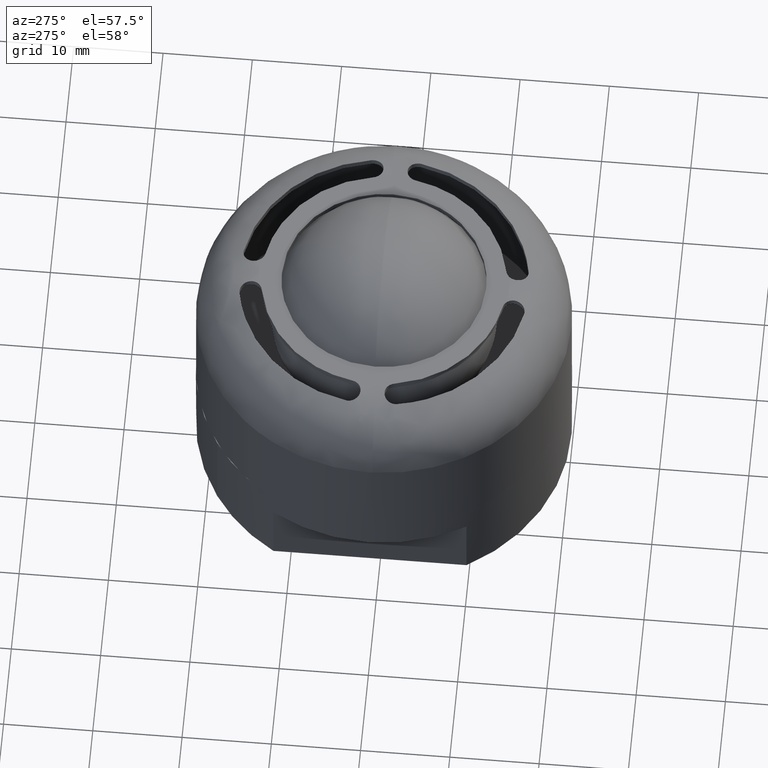
[diagram: clean part render]
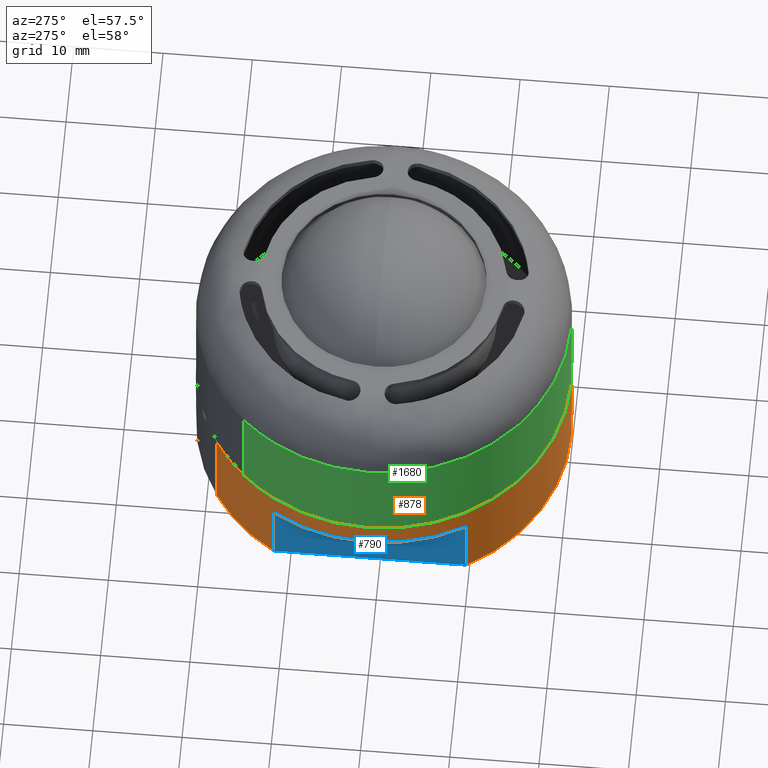
[diagram: same view with three faces highlighted in distinct colors, each labeled with its STEP entity id]
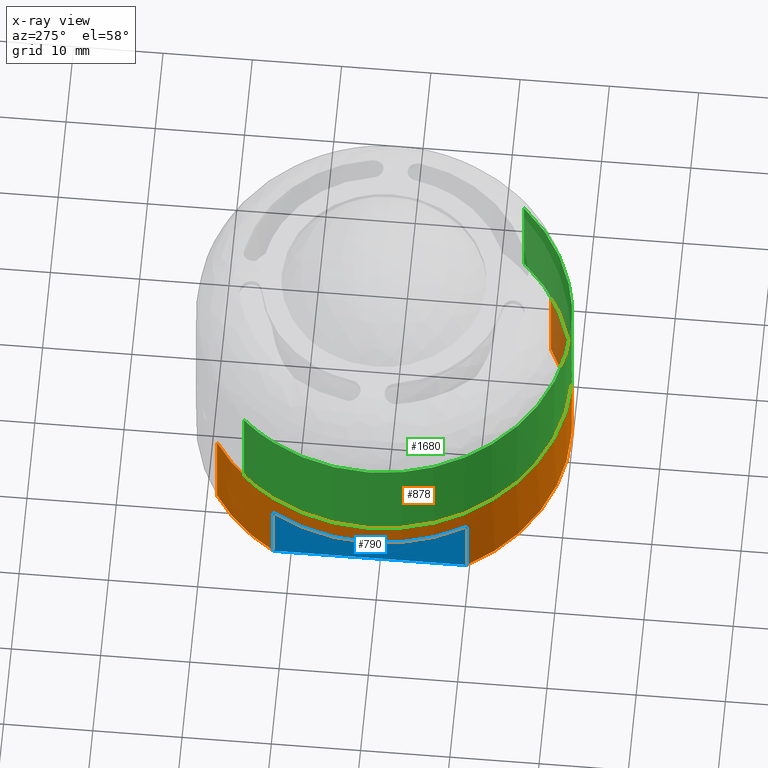
[diagram: x-ray of the same camera — body ghosted, the three highlighted faces saturated]
A machine part, auxiliary view with three faces highlighted in distinct colors.
The next image is the same camera in x-ray (body ghosted, the three faces saturated) — at least one of them is partly hidden behind the body in this view.
Their STEP definitions:

[orange] entity #878 — the highlighted face is a freeform B-spline surface patch.
#630=CARTESIAN_POINT('',(-18.0,-10.816653826392081,-2.999999999999890));
#631=VERTEX_POINT('',#630);
#632=CARTESIAN_POINT('',(-18.0,10.816653826392081,-2.999999999999890));
#633=VERTEX_POINT('',#632);
#634=CARTESIAN_POINT('',(-18.0,-10.816653826392081,-2.999999999999890));
#635=CARTESIAN_POINT('',(-18.518272285641078,-9.954302101341735,-2.999999999999889));
#636=CARTESIAN_POINT('',(-19.390225633279830,-8.234285500497679,-2.999999999999888));
#637=CARTESIAN_POINT('',(-20.230770941737859,-5.795067408385219,-2.999999999999904));
#638=CARTESIAN_POINT('',(-20.786282146024892,-3.308751073584634,-2.999999999999877));
#639=CARTESIAN_POINT('',(-21.043919973451899,-0.830383914730000,-2.999999999999882));
#640=CARTESIAN_POINT('',(-20.972202386517939,1.777570322526595,-2.999999999999899));
#641=CARTESIAN_POINT('',(-20.615633426347650,4.241335362935213,-2.999999999999878));
#642=CARTESIAN_POINT('',(-20.082149212292450,6.246882978568689,-2.999999999999897));
#643=CARTESIAN_POINT('',(-19.253121866344070,8.497140144097134,-2.999999999999899));
#644=CARTESIAN_POINT('',(-18.564018267227599,9.878218640584031,-2.999999999999879));
#645=CARTESIAN_POINT('',(-18.0,10.816653826392081,-2.999999999999890));
#646=B_SPLINE_CURVE_WITH_KNOTS('',3,(#634,#635,#636,#637,#638,#639,#640,#641,#642,#643,#644,#645),.UNSPECIFIED.,.F.,.U.,(4,1,1,1,1,1,1,1,1,4),(0.000000011714583,3.018322035879052,5.770323606497662,7.723361823333363,10.652905422518559,13.227354704216269,15.535485115898529,18.109939719177451,19.441553524177930,22.726197012007109),.UNSPECIFIED.);
#647=EDGE_CURVE('',#631,#633,#646,.T.);
#662=CARTESIAN_POINT('',(-18.0,10.816653826392081,-11.0));
#663=VERTEX_POINT('',#662);
#664=CARTESIAN_POINT('',(-18.0,-10.816653826392081,-11.0));
#665=VERTEX_POINT('',#664);
#671=CARTESIAN_POINT('',(-11.282451241010310,17.711755813420240,-11.0));
#672=VERTEX_POINT('',#671);
#673=CARTESIAN_POINT('',(-18.0,10.816653826392081,-11.0));
#674=CARTESIAN_POINT('',(-17.296608719263361,11.987483949395140,-11.000000000000050));
#675=CARTESIAN_POINT('',(-15.948061794842941,13.803350764913310,-10.999999999999821));
#676=CARTESIAN_POINT('',(-13.622083554567590,16.064729306395162,-11.000000000000281));
#677=CARTESIAN_POINT('',(-12.114470322565211,17.181814762016469,-10.999999999999890));
#678=CARTESIAN_POINT('',(-11.282451241010310,17.711755813420240,-11.0));
#679=B_SPLINE_CURVE_WITH_KNOTS('',3,(#673,#674,#675,#676,#677,#678),.UNSPECIFIED.,.F.,.U.,(4,1,1,4),(1.913980E-009,4.097575859319441,6.753404005191744,9.712762553861943),.UNSPECIFIED.);
#680=EDGE_CURVE('',#663,#672,#679,.T.);
#710=CARTESIAN_POINT('',(11.282451241010230,-17.711755813420250,-11.0));
#711=VERTEX_POINT('',#710);
#721=CARTESIAN_POINT('',(11.282451241010230,-17.711755813420250,-11.0));
#722=CARTESIAN_POINT('',(10.545915039776331,-18.180956517227010,-10.999999999999989));
#723=CARTESIAN_POINT('',(8.861027808877799,-19.111948403958809,-11.000000000000020));
#724=CARTESIAN_POINT('',(6.286722169602776,-20.103282747417310,-11.0));
#725=CARTESIAN_POINT('',(3.392969381858713,-20.791393399507658,-10.999999999999959));
#726=CARTESIAN_POINT('',(0.690089117620872,-21.052309043560900,-11.000000000000121));
#727=CARTESIAN_POINT('',(-2.019461114126639,-20.949568661728829,-10.999999999999959));
#728=CARTESIAN_POINT('',(-4.224109278274835,-20.608947809464912,-11.000000000000011));
#729=CARTESIAN_POINT('',(-6.295808445508635,-20.066229137119379,-11.000000000000060));
#730=CARTESIAN_POINT('',(-8.226182857611830,-19.362085016724912,-11.000000000000110));
#731=CARTESIAN_POINT('',(-10.467544489238490,-18.271962736875292,-10.999999999999639));
#732=CARTESIAN_POINT('',(-12.554460240699060,-16.902980739679641,-11.000000000000069));
#733=CARTESIAN_POINT('',(-14.351957074183360,-15.372430012093810,-10.999999999999980));
#734=CARTESIAN_POINT('',(-16.181095171739688,-13.493292596633280,-10.999999999999890));
#735=CARTESIAN_POINT('',(-17.325410690191472,-11.939556709921080,-11.000000000000510));
#736=CARTESIAN_POINT('',(-18.0,-10.816653826392081,-11.0));
#737=B_SPLINE_CURVE_WITH_KNOTS('',3,(#721,#722,#723,#724,#725,#726,#727,#728,#729,#730,#731,#732,#733,#734,#735,#736),.UNSPECIFIED.,.F.,.U.,(4,1,1,1,1,1,1,1,1,1,1,1,1,4),(8.013217E-009,2.619873732768184,5.763748982863849,8.252646212254462,11.527508196396759,13.885421138348219,16.374311669921241,18.208204599370049,20.304128888275979,22.531026935361648,25.674901322539071,27.770810105180541,29.604736216549512,33.534562732801881),.UNSPECIFIED.);
#738=EDGE_CURVE('',#711,#665,#737,.T.);
#777=CARTESIAN_POINT('',(-18.0,10.816653826392081,-11.0));
#778=CARTESIAN_POINT('',(-18.0,10.816653826392081,-2.999999999999890));
#779=QUASI_UNIFORM_CURVE('',1,(#777,#778),.UNSPECIFIED.,.F.,.U.);
#780=EDGE_CURVE('',#663,#633,#779,.T.);
#783=CARTESIAN_POINT('',(-18.0,-10.816653826392081,-11.0));
#784=CARTESIAN_POINT('',(-18.0,-10.816653826392081,-2.999999999999890));
#785=QUASI_UNIFORM_CURVE('',1,(#783,#784),.UNSPECIFIED.,.F.,.U.);
#786=EDGE_CURVE('',#665,#631,#785,.T.);
#791=CARTESIAN_POINT('',(-11.282451226334469,17.711755822768819,-11.275000000000000));
#792=CARTESIAN_POINT('',(-28.994207049103267,6.429304596434394,-11.275000000000004));
#793=CARTESIAN_POINT('',(-17.711755822768851,-11.282451226334411,-11.275000000000000));
#794=CARTESIAN_POINT('',(-6.429304596434430,-28.994207049103213,-11.275000000000004));
#795=CARTESIAN_POINT('',(11.282451226334370,-17.711755822768790,-11.275000000000000));
#796=CARTESIAN_POINT('',(-11.282451226334469,17.711755822768819,0.281874999999999));
#797=CARTESIAN_POINT('',(-28.994207049103267,6.429304596434394,0.281874999999999));
#798=CARTESIAN_POINT('',(-17.711755822768851,-11.282451226334411,0.281874999999999));
#799=CARTESIAN_POINT('',(-6.429304596434430,-28.994207049103213,0.281874999999999));
#800=CARTESIAN_POINT('',(11.282451226334370,-17.711755822768790,0.281874999999999));
#808=(BOUNDED_SURFACE()B_SPLINE_SURFACE(2,1,((#791,#796),(#792,#797),(#793,#798),(#794,#799),(#795,#800)),.UNSPECIFIED.,.F.,.F.,.U.)B_SPLINE_SURFACE_WITH_KNOTS((3,2,3),(2,2),(0.0,34.793939239339970,69.587878478679940),(0.0,11.556875000000000),.UNSPECIFIED.)GEOMETRIC_REPRESENTATION_ITEM()RATIONAL_B_SPLINE_SURFACE(((1.0,1.0),(0.707106781186548,0.707106781186548),(1.0,1.0),(0.707106781186548,0.707106781186548),(1.0,1.0)))REPRESENTATION_ITEM('')SURFACE());
#809=CARTESIAN_POINT('',(-21.000000000000050,1.421085E-014,0.0));
#810=VERTEX_POINT('',#809);
#811=CARTESIAN_POINT('',(-11.282451234374360,17.711755817647390,1.942890E-016));
#812=VERTEX_POINT('',#811);
#813=CARTESIAN_POINT('',(-21.000000000000050,1.421085E-014,0.0));
#814=CARTESIAN_POINT('',(-21.000012397021219,0.740945007469344,8.127793E-018));
#815=CARTESIAN_POINT('',(-20.920022428121950,2.250275067684523,2.468438E-017));
#816=CARTESIAN_POINT('',(-20.484689966634161,4.936141831832487,5.414699E-017));
#817=CARTESIAN_POINT('',(-19.600226711492720,7.776438064844617,8.530360E-017));
#818=CARTESIAN_POINT('',(-18.175038160246640,10.662512610255449,1.169624E-016));
#819=CARTESIAN_POINT('',(-16.679692338565321,12.839901154614290,1.408472E-016));
#820=CARTESIAN_POINT('',(-15.213484133231150,14.513620177713040,1.592071E-016));
#821=CARTESIAN_POINT('',(-13.549442463891380,16.111684391548021,1.767371E-016));
#822=CARTESIAN_POINT('',(-12.208312869059670,17.122064668178218,1.878204E-016));
#823=CARTESIAN_POINT('',(-11.282451234374360,17.711755817647390,1.942890E-016));
#824=B_SPLINE_CURVE_WITH_KNOTS('',3,(#813,#814,#815,#816,#817,#818,#819,#820,#821,#822,#823),.UNSPECIFIED.,.F.,.U.,(4,1,1,1,1,1,1,1,4),(9.490005E-009,2.222835802895862,4.528015037083712,8.150431518160831,11.114219443541741,14.160339196078720,16.053878888879670,17.782761037047539,21.075860819471060),.UNSPECIFIED.);
#825=EDGE_CURVE('',#810,#812,#824,.T.);
#826=ORIENTED_EDGE('',*,*,#825,.T.);
#827=CARTESIAN_POINT('',(-11.282451241010310,17.711755813420240,-11.0));
#828=CARTESIAN_POINT('',(-11.282451234374360,17.711755817647390,1.942890E-016));
#829=QUASI_UNIFORM_CURVE('',1,(#827,#828),.UNSPECIFIED.,.F.,.U.);
#830=EDGE_CURVE('',#672,#812,#829,.T.);
#831=ORIENTED_EDGE('',*,*,#830,.F.);
#832=ORIENTED_EDGE('',*,*,#680,.F.);
#833=ORIENTED_EDGE('',*,*,#780,.T.);
#834=ORIENTED_EDGE('',*,*,#647,.F.);
#835=ORIENTED_EDGE('',*,*,#786,.F.);
#836=ORIENTED_EDGE('',*,*,#738,.F.);
#837=CARTESIAN_POINT('',(11.282451234374260,-17.711755817647362,1.942890E-016));
#838=VERTEX_POINT('',#837);
#839=CARTESIAN_POINT('',(11.282451241010230,-17.711755813420250,-11.0));
#840=CARTESIAN_POINT('',(11.282451234374260,-17.711755817647362,1.942890E-016));
#841=QUASI_UNIFORM_CURVE('',1,(#839,#840),.UNSPECIFIED.,.F.,.U.);
#842=EDGE_CURVE('',#711,#838,#841,.T.);
#843=ORIENTED_EDGE('',*,*,#842,.T.);
#844=CARTESIAN_POINT('',(-2.486900E-014,-20.999999999999989,0.0));
#845=VERTEX_POINT('',#844);
#846=CARTESIAN_POINT('',(11.282451234374260,-17.711755817647362,1.942890E-016));
#847=CARTESIAN_POINT('',(10.419166456176770,-18.261743615880778,1.794229E-016));
#848=CARTESIAN_POINT('',(8.995282399220715,-19.028568351593471,1.549029E-016));
#849=CARTESIAN_POINT('',(6.774304830432702,-19.912723882876911,1.166567E-016));
#850=CARTESIAN_POINT('',(4.625555621875963,-20.533840945338540,7.965421E-017));
#851=CARTESIAN_POINT('',(2.295326052499405,-20.919325991954889,3.952658E-017));
#852=CARTESIAN_POINT('',(0.713411561707552,-21.000009004599260,1.228528E-017));
#853=CARTESIAN_POINT('',(-2.486900E-014,-20.999999999999989,0.0));
#854=B_SPLINE_CURVE_WITH_KNOTS('',3,(#846,#847,#848,#849,#850,#851,#852,#853),.UNSPECIFIED.,.F.,.U.,(4,1,1,1,1,4),(3.194934E-009,3.070775330585958,4.838799221670143,7.165136911436084,9.770648933943196,11.910885284244690),.UNSPECIFIED.);
#855=EDGE_CURVE('',#838,#845,#854,.T.);
#856=ORIENTED_EDGE('',*,*,#855,.T.);
#857=CARTESIAN_POINT('',(-2.486900E-014,-20.999999999999989,0.0));
#858=CARTESIAN_POINT('',(-0.859030469753723,-21.000027464147720,0.0));
#859=CARTESIAN_POINT('',(-2.491177083329223,-20.899707906544521,0.0));
#860=CARTESIAN_POINT('',(-4.946772883663678,-20.458108580750540,0.0));
#861=CARTESIAN_POINT('',(-7.293999956243717,-19.746078832167591,0.0));
#862=CARTESIAN_POINT('',(-9.696599547317112,-18.689897242095888,0.0));
#863=CARTESIAN_POINT('',(-12.096733127518361,-17.251355687514060,0.0));
#864=CARTESIAN_POINT('',(-14.204629732489240,-15.542945188792970,0.0));
#865=CARTESIAN_POINT('',(-16.108783804205078,-13.555185854012620,0.0));
#866=CARTESIAN_POINT('',(-17.654152223515780,-11.484844435818840,0.0));
#867=CARTESIAN_POINT('',(-18.808039929729190,-9.418397267937065,0.0));
#868=CARTESIAN_POINT('',(-19.701199535940230,-7.369619453116988,0.0));
#869=CARTESIAN_POINT('',(-20.323838502462170,-5.445327417308523,0.0));
#870=CARTESIAN_POINT('',(-20.859165621539240,-2.877719085999011,0.0));
#871=CARTESIAN_POINT('',(-21.000090442157209,-1.116744712950737,0.0));
#872=CARTESIAN_POINT('',(-21.000000000000050,1.421085E-014,0.0));
#873=B_SPLINE_CURVE_WITH_KNOTS('',3,(#857,#858,#859,#860,#861,#862,#863,#864,#865,#866,#867,#868,#869,#870,#871,#872),.UNSPECIFIED.,.F.,.U.,(4,1,1,1,1,1,1,1,1,1,1,1,1,4),(9.836093E-009,2.577091227575135,4.896470027354695,7.473566079309673,9.921805597109707,12.756617502376420,15.849135057540270,18.039641631653431,21.003289018342858,23.580386730264031,25.126646133845458,27.703745182233540,29.636557242023699,32.986774609286122),.UNSPECIFIED.);
#874=EDGE_CURVE('',#845,#810,#873,.T.);
#875=ORIENTED_EDGE('',*,*,#874,.T.);
#876=EDGE_LOOP('',(#826,#831,#832,#833,#834,#835,#836,#843,#856,#875));
#877=FACE_OUTER_BOUND('',#876,.T.);
#878=ADVANCED_FACE('',(#877),#808,.T.);

[blue] entity #790 — the highlighted face is a freeform B-spline surface patch.
#630=CARTESIAN_POINT('',(-18.0,-10.816653826392081,-2.999999999999890));
#631=VERTEX_POINT('',#630);
#632=CARTESIAN_POINT('',(-18.0,10.816653826392081,-2.999999999999890));
#633=VERTEX_POINT('',#632);
#649=CARTESIAN_POINT('',(-18.0,10.816653826392081,-2.999999999999890));
#650=CARTESIAN_POINT('',(-18.0,-10.816653826392081,-2.999999999999890));
#651=QUASI_UNIFORM_CURVE('',1,(#649,#650),.UNSPECIFIED.,.F.,.U.);
#652=EDGE_CURVE('',#633,#631,#651,.T.);
#662=CARTESIAN_POINT('',(-18.0,10.816653826392081,-11.0));
#663=VERTEX_POINT('',#662);
#664=CARTESIAN_POINT('',(-18.0,-10.816653826392081,-11.0));
#665=VERTEX_POINT('',#664);
#666=CARTESIAN_POINT('',(-18.0,10.816653826392081,-11.0));
#667=CARTESIAN_POINT('',(-18.0,-10.816653826392081,-11.0));
#668=QUASI_UNIFORM_CURVE('',1,(#666,#667),.UNSPECIFIED.,.F.,.U.);
#669=EDGE_CURVE('',#663,#665,#668,.T.);
#771=CARTESIAN_POINT('',(-18.0,-11.897237501719101,-11.399599984494451));
#772=CARTESIAN_POINT('',(-18.0,-11.897237501719101,-2.600399800928716));
#773=CARTESIAN_POINT('',(-18.0,11.897238081969631,-11.399599984494451));
#774=CARTESIAN_POINT('',(-18.0,11.897238081969631,-2.600399800928716));
#775=B_SPLINE_SURFACE_WITH_KNOTS('',1,1,((#771,#773),(#772,#774)),.UNSPECIFIED.,.F.,.F.,.U.,(2,2),(2,2),(0.0,8.799200183565738),(0.0,23.794475583688730),.UNSPECIFIED.);
#776=ORIENTED_EDGE('',*,*,#652,.F.);
#777=CARTESIAN_POINT('',(-18.0,10.816653826392081,-11.0));
#778=CARTESIAN_POINT('',(-18.0,10.816653826392081,-2.999999999999890));
#779=QUASI_UNIFORM_CURVE('',1,(#777,#778),.UNSPECIFIED.,.F.,.U.);
#780=EDGE_CURVE('',#663,#633,#779,.T.);
#781=ORIENTED_EDGE('',*,*,#780,.F.);
#782=ORIENTED_EDGE('',*,*,#669,.T.);
#783=CARTESIAN_POINT('',(-18.0,-10.816653826392081,-11.0));
#784=CARTESIAN_POINT('',(-18.0,-10.816653826392081,-2.999999999999890));
#785=QUASI_UNIFORM_CURVE('',1,(#783,#784),.UNSPECIFIED.,.F.,.U.);
#786=EDGE_CURVE('',#665,#631,#785,.T.);
#787=ORIENTED_EDGE('',*,*,#786,.T.);
#788=EDGE_LOOP('',(#776,#781,#782,#787));
#789=FACE_OUTER_BOUND('',#788,.T.);
#790=ADVANCED_FACE('',(#789),#775,.T.);

[green] entity #1680 — the highlighted face is a freeform B-spline surface patch.
#1067=CARTESIAN_POINT('',(-21.0,0.0,0.0));
#1068=VERTEX_POINT('',#1067);
#1069=CARTESIAN_POINT('',(-15.343410191131410,14.338052995671500,-2.220446E-016));
#1070=VERTEX_POINT('',#1069);
#1071=CARTESIAN_POINT('',(-21.0,0.0,0.0));
#1072=CARTESIAN_POINT('',(-21.000066594188759,1.068598771934983,-1.654873E-017));
#1073=CARTESIAN_POINT('',(-20.845942064183550,3.082470201608055,-4.773632E-017));
#1074=CARTESIAN_POINT('',(-20.279148010482992,5.615014724185579,-8.695628E-017));
#1075=CARTESIAN_POINT('',(-19.429076509068128,8.106614688278631,-1.255422E-016));
#1076=CARTESIAN_POINT('',(-18.319174108336451,10.409276137490620,-1.612021E-016));
#1077=CARTESIAN_POINT('',(-16.829794979788218,12.633193150654501,-1.956425E-016));
#1078=CARTESIAN_POINT('',(-15.820459681123619,13.827564568923069,-2.141390E-016));
#1079=CARTESIAN_POINT('',(-15.343410191131410,14.338052995671500,-2.220446E-016));
#1080=B_SPLINE_CURVE_WITH_KNOTS('',3,(#1071,#1072,#1073,#1074,#1075,#1076,#1077,#1078,#1079),.UNSPECIFIED.,.F.,.U.,(4,1,1,1,1,1,4),(4.241441E-009,3.205788562843646,6.041683972787686,7.767882290569827,11.096965242280350,13.686264602008880,15.782353363115091),.UNSPECIFIED.);
#1081=EDGE_CURVE('',#1068,#1070,#1080,.T.);
#1119=CARTESIAN_POINT('',(15.343410191131410,-14.338052995671500,4.163336E-016));
#1120=VERTEX_POINT('',#1119);
#1133=CARTESIAN_POINT('',(-2.486900E-014,-20.999999999999989,0.0));
#1134=VERTEX_POINT('',#1133);
#1135=CARTESIAN_POINT('',(15.343410191131410,-14.338052995671500,4.163336E-016));
#1136=CARTESIAN_POINT('',(14.823393005234969,-14.894558060788910,4.022233E-016));
#1137=CARTESIAN_POINT('',(13.755077927572341,-15.919812949677910,3.732353E-016));
#1138=CARTESIAN_POINT('',(11.875639423233119,-17.376204103089059,3.222379E-016));
#1139=CARTESIAN_POINT('',(9.494052116219534,-18.817000838366969,2.576150E-016));
#1140=CARTESIAN_POINT('',(6.840307956420538,-19.929052206625961,1.856074E-016));
#1141=CARTESIAN_POINT('',(3.584172739285065,-20.781334234246081,9.725424E-017));
#1142=CARTESIAN_POINT('',(1.388917622394099,-21.000206468957241,3.768739E-017));
#1143=CARTESIAN_POINT('',(-2.486900E-014,-20.999999999999989,0.0));
#1144=B_SPLINE_CURVE_WITH_KNOTS('',3,(#1135,#1136,#1137,#1138,#1139,#1140,#1141,#1142,#1143),.UNSPECIFIED.,.F.,.U.,(4,1,1,1,1,1,4),(2.856460E-009,2.284961649827698,4.435514997738517,7.123713273652486,10.618351479746540,13.037725763641991,17.204421534664188),.UNSPECIFIED.);
#1145=EDGE_CURVE('',#1120,#1134,#1144,.T.);
#1147=CARTESIAN_POINT('',(-2.486900E-014,-20.999999999999989,0.0));
#1148=CARTESIAN_POINT('',(-1.374460385014813,-21.000188269445779,0.0));
#1149=CARTESIAN_POINT('',(-3.650804376030175,-20.775656604537090,0.0));
#1150=CARTESIAN_POINT('',(-6.852898119788456,-19.921174466524700,0.0));
#1151=CARTESIAN_POINT('',(-9.392920639828260,-18.850755887416440,0.0));
#1152=CARTESIAN_POINT('',(-11.396588163495011,-17.674673705451450,0.0));
#1153=CARTESIAN_POINT('',(-13.141959344577851,-16.421267319093271,0.0));
#1154=CARTESIAN_POINT('',(-14.568054762227799,-15.175763939965231,0.0));
#1155=CARTESIAN_POINT('',(-16.035660262818681,-13.605567181244741,0.0));
#1156=CARTESIAN_POINT('',(-17.511724017016270,-11.702303790959750,0.0));
#1157=CARTESIAN_POINT('',(-18.705017980674778,-9.654816121492038,0.0));
#1158=CARTESIAN_POINT('',(-19.701197636786691,-7.369618758591784,0.0));
#1159=CARTESIAN_POINT('',(-20.323835400482508,-5.445326469916694,0.0));
#1160=CARTESIAN_POINT('',(-20.859178841811509,-2.877720066723036,0.0));
#1161=CARTESIAN_POINT('',(-21.000073871293790,-1.116743455481021,0.0));
#1162=CARTESIAN_POINT('',(-21.0,0.0,0.0));
#1163=B_SPLINE_CURVE_WITH_KNOTS('',3,(#1147,#1148,#1149,#1150,#1151,#1152,#1153,#1154,#1155,#1156,#1157,#1158,#1159,#1160,#1161,#1162),.UNSPECIFIED.,.F.,.U.,(4,1,1,1,1,1,1,1,1,1,1,1,1,4),(9.843689E-009,4.123337786594984,6.829289148905819,9.921805597117825,12.370046063540469,13.787451721987020,16.364539373228450,18.039641631660650,20.230158708138671,23.580386730269080,25.126646133849619,27.703745182236389,29.636557242025511,32.986774609285938),.UNSPECIFIED.);
#1164=EDGE_CURVE('',#1134,#1068,#1163,.T.);
#1587=CARTESIAN_POINT('',(15.343410182466229,-14.338053004944269,11.787500000000250));
#1588=CARTESIAN_POINT('',(1.005357177521963,-29.681463187410497,11.787500000000247));
#1589=CARTESIAN_POINT('',(-14.338053004944269,-15.343410182466229,11.787500000000250));
#1590=CARTESIAN_POINT('',(-29.681463187410497,-1.005357177521963,11.787500000000247));
#1591=CARTESIAN_POINT('',(-15.343410182466229,14.338053004944269,11.787500000000250));
#1592=CARTESIAN_POINT('',(15.343410182466229,-14.338053004944269,-0.294687500000005));
#1593=CARTESIAN_POINT('',(1.005357177521963,-29.681463187410497,-0.294687500000006));
#1594=CARTESIAN_POINT('',(-14.338053004944269,-15.343410182466229,-0.294687500000005));
#1595=CARTESIAN_POINT('',(-29.681463187410497,-1.005357177521963,-0.294687500000006));
#1596=CARTESIAN_POINT('',(-15.343410182466229,14.338053004944269,-0.294687500000005));
#1604=(BOUNDED_SURFACE()B_SPLINE_SURFACE(2,1,((#1587,#1592),(#1588,#1593),(#1589,#1594),(#1590,#1595),(#1591,#1596)),.UNSPECIFIED.,.F.,.F.,.U.)B_SPLINE_SURFACE_WITH_KNOTS((3,2,3),(2,2),(0.0,34.793939239339963,69.587878478679926),(0.0,12.082187500000250),.UNSPECIFIED.)GEOMETRIC_REPRESENTATION_ITEM()RATIONAL_B_SPLINE_SURFACE(((1.0,1.0),(0.707106781186548,0.707106781186548),(1.0,1.0),(0.707106781186548,0.707106781186548),(1.0,1.0)))REPRESENTATION_ITEM('')SURFACE());
#1605=CARTESIAN_POINT('',(15.343410188817240,-14.338052998152040,11.499998259417669));
#1606=VERTEX_POINT('',#1605);
#1607=CARTESIAN_POINT('',(0.263855487953599,-20.998342322227948,11.499993737621580));
#1608=VERTEX_POINT('',#1607);
#1609=CARTESIAN_POINT('',(15.343410188817240,-14.338052998152040,11.499998259417669));
#1610=CARTESIAN_POINT('',(14.741016795901350,-14.982730658952820,11.499998077363520));
#1611=CARTESIAN_POINT('',(13.647716501666009,-16.013976870422461,11.499997747468541));
#1612=CARTESIAN_POINT('',(11.783266523445310,-17.428691464989178,11.499997186173930));
#1613=CARTESIAN_POINT('',(9.931562746872999,-18.551553337099708,11.499996629774010));
#1614=CARTESIAN_POINT('',(7.527871377041182,-19.668037398591551,11.499995908791140));
#1615=CARTESIAN_POINT('',(5.037944105094607,-20.453631640966869,11.499995163332070));
#1616=CARTESIAN_POINT('',(2.468524311556664,-20.894939165260318,11.499994395457820));
#1617=CARTESIAN_POINT('',(0.969653925085365,-20.989483016848052,11.499993948129410));
#1618=CARTESIAN_POINT('',(0.263855487953599,-20.998342322227948,11.499993737621580));
#1619=B_SPLINE_CURVE_WITH_KNOTS('',3,(#1609,#1610,#1611,#1612,#1613,#1614,#1615,#1616,#1617,#1618),.UNSPECIFIED.,.F.,.U.,(4,1,1,1,1,1,1,4),(3.269722E-009,2.646957502260582,4.499836400758074,7.014454422319723,9.132009736808076,12.440721372444330,14.822992274107200,16.940557769931669),.UNSPECIFIED.);
#1620=EDGE_CURVE('',#1606,#1608,#1619,.T.);
#1621=ORIENTED_EDGE('',*,*,#1620,.T.);
#1622=CARTESIAN_POINT('',(-20.993368387359819,-0.527715597069550,11.499987475256731));
#1623=VERTEX_POINT('',#1622);
#1624=CARTESIAN_POINT('',(0.263855487953599,-20.998342322227948,11.499993737621580));
#1625=CARTESIAN_POINT('',(-1.099496235544173,-21.015656355625101,11.499993330994039));
#1626=CARTESIAN_POINT('',(-3.317578430053080,-20.826751314864801,11.499992670251780));
#1627=CARTESIAN_POINT('',(-6.052073803914620,-20.148584171591949,11.499991857344209));
#1628=CARTESIAN_POINT('',(-8.057626982705788,-19.424295971393729,11.499991261986249));
#1629=CARTESIAN_POINT('',(-10.143894894414190,-18.447630208049912,11.499990643503841));
#1630=CARTESIAN_POINT('',(-12.207591250411630,-17.154947599254321,11.499990032937159));
#1631=CARTESIAN_POINT('',(-14.091828013062370,-15.617483568743801,11.499989476804091));
#1632=CARTESIAN_POINT('',(-15.782028700583460,-13.929317239926380,11.499988979098569));
#1633=CARTESIAN_POINT('',(-17.288708913389751,-12.016953235260040,11.499988536960990));
#1634=CARTESIAN_POINT('',(-18.610541907639789,-9.824247158169360,11.499988150996399));
#1635=CARTESIAN_POINT('',(-19.749048569423660,-7.341351392022654,11.499987820789199));
#1636=CARTESIAN_POINT('',(-20.677874239548210,-4.227797547408478,11.499987555473631));
#1637=CARTESIAN_POINT('',(-20.961368343659821,-1.805554179225109,11.499987480010869));
#1638=CARTESIAN_POINT('',(-20.993368387359819,-0.527715597069550,11.499987475256731));
#1639=B_SPLINE_CURVE_WITH_KNOTS('',3,(#1624,#1625,#1626,#1627,#1628,#1629,#1630,#1631,#1632,#1633,#1634,#1635,#1636,#1637,#1638),.UNSPECIFIED.,.F.,.U.,(4,1,1,1,1,1,1,1,1,1,1,1,4),(0.000000010627190,4.090346179860546,6.646828693790710,8.436364496558269,10.481548324893421,13.549316011220160,15.722335109652020,17.767492104969119,20.707426752968459,23.008260024106072,25.436917223497218,28.888165675824251,32.722864654646031),.UNSPECIFIED.);
#1640=EDGE_CURVE('',#1608,#1623,#1639,.T.);
#1641=ORIENTED_EDGE('',*,*,#1640,.T.);
#1642=CARTESIAN_POINT('',(-21.0,0.0,11.500000000000201));
#1643=VERTEX_POINT('',#1642);
#1644=CARTESIAN_POINT('',(-20.993368387359819,-0.527715597069550,11.499987475256731));
#1645=CARTESIAN_POINT('',(-20.997789240548951,-0.351848495049241,11.499991649926310));
#1646=CARTESIAN_POINT('',(-21.000000045159890,-0.175922305187864,11.499995825338980));
#1647=CARTESIAN_POINT('',(-21.0,0.0,11.500000000000201));
#1648=B_SPLINE_CURVE_WITH_KNOTS('',3,(#1644,#1645,#1646,#1647),.UNSPECIFIED.,.F.,.U.,(4,4),(8.567147E-012,0.527772021602235),.UNSPECIFIED.);
#1649=EDGE_CURVE('',#1623,#1643,#1648,.T.);
#1650=ORIENTED_EDGE('',*,*,#1649,.T.);
#1651=CARTESIAN_POINT('',(-15.343410188817231,14.338052998152040,11.499998259417641));
#1652=VERTEX_POINT('',#1651);
#1653=CARTESIAN_POINT('',(-21.0,0.0,11.500000000000201));
#1654=CARTESIAN_POINT('',(-21.000025862269109,0.904196162848490,11.499999996618840));
#1655=CARTESIAN_POINT('',(-20.875072149144479,2.835886784917681,11.499999952116360));
#1656=CARTESIAN_POINT('',(-20.319620306579139,5.540544819988820,11.499999776338569));
#1657=CARTESIAN_POINT('',(-19.494668499493219,7.912605405436048,11.499999521440440));
#1658=CARTESIAN_POINT('',(-18.459913490480769,10.108594034363710,11.499999204636980));
#1659=CARTESIAN_POINT('',(-17.136135247243441,12.244435084637759,11.499998801870129));
#1660=CARTESIAN_POINT('',(-15.960781954138721,13.677429947239220,11.499998445999060));
#1661=CARTESIAN_POINT('',(-15.343410188817231,14.338052998152040,11.499998259417641));
#1662=B_SPLINE_CURVE_WITH_KNOTS('',3,(#1653,#1654,#1655,#1656,#1657,#1658,#1659,#1660,#1661),.UNSPECIFIED.,.F.,.U.,(4,1,1,1,1,1,4),(4.241539E-009,2.712590991617129,5.795087923818242,8.261065538940027,10.233865483240249,13.069762379133710,15.782353366509289),.UNSPECIFIED.);
#1663=EDGE_CURVE('',#1643,#1652,#1662,.T.);
#1664=ORIENTED_EDGE('',*,*,#1663,.T.);
#1665=CARTESIAN_POINT('',(-15.343410188817231,14.338052998152040,11.499998259417641));
#1666=CARTESIAN_POINT('',(-15.343410191131410,14.338052995671500,-2.220446E-016));
#1667=QUASI_UNIFORM_CURVE('',1,(#1665,#1666),.UNSPECIFIED.,.F.,.U.);
#1668=EDGE_CURVE('',#1652,#1070,#1667,.T.);
#1669=ORIENTED_EDGE('',*,*,#1668,.T.);
#1670=ORIENTED_EDGE('',*,*,#1081,.F.);
#1671=ORIENTED_EDGE('',*,*,#1164,.F.);
#1672=ORIENTED_EDGE('',*,*,#1145,.F.);
#1673=CARTESIAN_POINT('',(15.343410188817240,-14.338052998152040,11.499998259417669));
#1674=CARTESIAN_POINT('',(15.343410191131410,-14.338052995671500,4.163336E-016));
#1675=QUASI_UNIFORM_CURVE('',1,(#1673,#1674),.UNSPECIFIED.,.F.,.U.);
#1676=EDGE_CURVE('',#1606,#1120,#1675,.T.);
#1677=ORIENTED_EDGE('',*,*,#1676,.F.);
#1678=EDGE_LOOP('',(#1621,#1641,#1650,#1664,#1669,#1670,#1671,#1672,#1677));
#1679=FACE_OUTER_BOUND('',#1678,.T.);
#1680=ADVANCED_FACE('',(#1679),#1604,.T.);